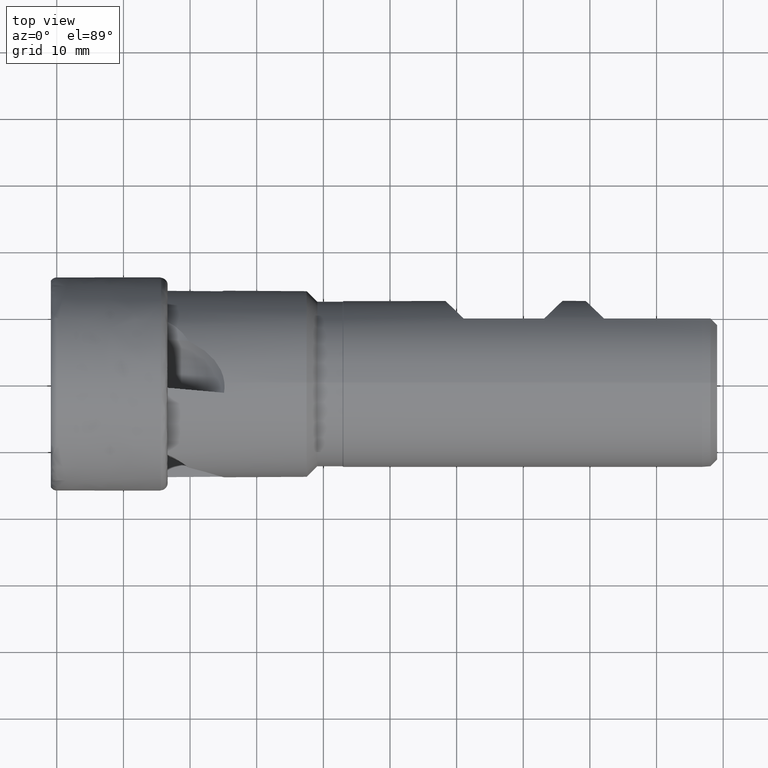
[diagram: clean part render]
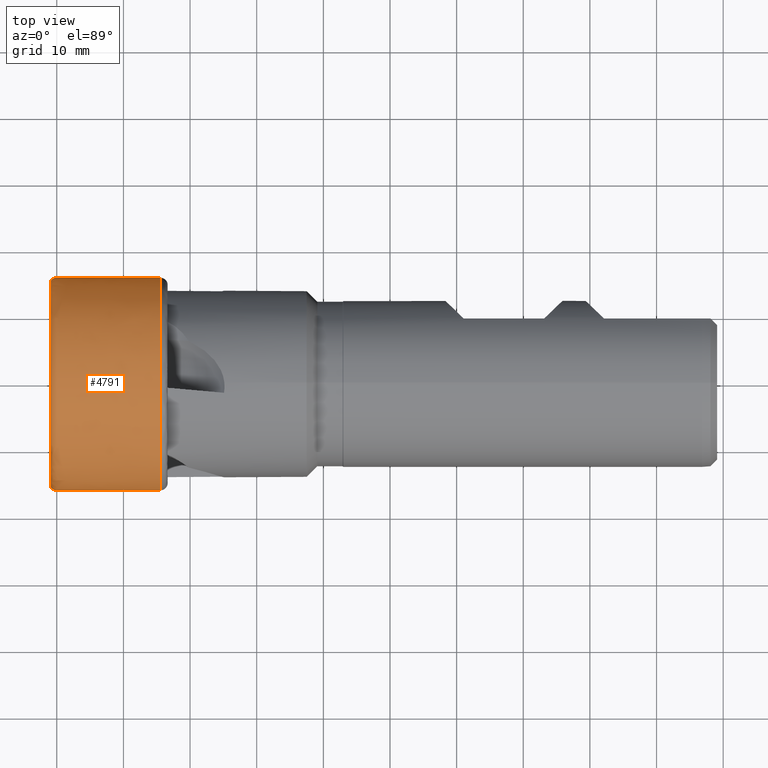
[diagram: same view with one face highlighted and labeled with its STEP entity id]
A machine part, top view. The second image highlights one B-rep face of the part: STEP entity #4791.
In plain terms, the highlighted face is a freeform B-spline surface patch.
Its self-contained STEP definition (entity closure, byte-faithful):
#20 =( BOUNDED_CURVE ( )  B_SPLINE_CURVE ( 3, ( #3063, #3051, #3053, #3055, #3093, #3079, #3061, #3095, #3047, #3059, #3089, #3087, #3091, #3065, #3033, #3039, #3069, #3075, #3073, #3057, #3043, #3041, #3035, #3085, #3049, #3045, #3077, #3083, #3031, #3037, #4803, #4811, #4810, #4805, #4798, #4808, #4807, #4799 ),
 .UNSPECIFIED., .F., .T. ) 
 B_SPLINE_CURVE_WITH_KNOTS ( ( 4, 3, 1, 1, 3, 1, 1, 3, 1, 1, 3, 3, 1, 1, 3, 3, 1, 1, 3, 4 ),
 ( 0.0000000000000000000, 0.05971677211036691800, 0.06116035996774783100, 0.06260394782512873600, 0.06404753568250964900, 0.06649883445116186500, 0.06895013321981409400, 0.07140143198846631000, 0.07283593410986043100, 0.07427043623125453900, 0.07570493835264866000, 0.08923298506668335400, 0.09444165856941083600, 0.09965033207213830300, 0.1048590055748657900, 0.4954390119312780900, 0.4967079386537190900, 0.4979768653761601500, 0.4992457920986011500, 0.4999999999999998300 ),
 .UNSPECIFIED. ) 
 CURVE ( )  GEOMETRIC_REPRESENTATION_ITEM ( )  RATIONAL_B_SPLINE_CURVE ( ( 1.000000000000000000, 1.000000000000000000, 1.000000000000000000, 1.000000000000000000, 1.000000000000000000, 1.000000000000000000, 1.000000000000000000, 1.000000000000000000, 1.000000000000000000, 1.000000000000000000, 1.000000000000000000, 1.000000000000000000, 1.000000000000000000, 1.000000000000000000, 1.000000000000000000, 1.000000000000000000, 1.000000000000000000, 1.000000000000000000, 1.000000000000000000, 0.9833594575083340900, 0.9833594575083340900, 1.000000000000000000, 1.000000000000000000, 1.000000000000000000, 1.000000000000000000, 1.000000000000000000, 1.000000000000000000, 1.000000000000000000, 1.000000000000000000, 1.000000000000000000, 1.000000000000000000, 1.000000000000000000, 1.000000000000000000, 1.000000000000000000, 1.000000000000000000, 0.9967810657435854900, 0.9936257405698391000, 0.9905340244787608200 ) ) 
 REPRESENTATION_ITEM ( '' )  );
#28 =( BOUNDED_CURVE ( )  B_SPLINE_CURVE ( 3, ( #1748, #1694, #1653, #1749, #1695, #1710, #1809, #1723, #1671, #1670, #1701, #1668, #1776, #1775, #1673, #1771, #1724, #1702, #1657, #1705, #1700, #1716, #1664, #1713, #1675, #1684, #1686, #1772, #1682, #1774, #1648, #1680, #1777, #1715, #1720, #1706, #1726, #1667 ),
 .UNSPECIFIED., .F., .T. ) 
 B_SPLINE_CURVE_WITH_KNOTS ( ( 4, 3, 1, 1, 3, 1, 1, 3, 1, 1, 3, 3, 1, 1, 3, 3, 1, 1, 3, 4 ),
 ( 0.0000000000000000000, 0.05971677211036691800, 0.06116035996774783100, 0.06260394782512873600, 0.06404753568250964900, 0.06649883445116186500, 0.06895013321981409400, 0.07140143198846631000, 0.07283593410986043100, 0.07427043623125453900, 0.07570493835264866000, 0.08923298506668335400, 0.09444165856941083600, 0.09965033207213830300, 0.1048590055748657900, 0.4954390119312780900, 0.4967079386537190900, 0.4979768653761601500, 0.4992457920986011500, 0.4999999999999998300 ),
 .UNSPECIFIED. ) 
 CURVE ( )  GEOMETRIC_REPRESENTATION_ITEM ( )  RATIONAL_B_SPLINE_CURVE ( ( 1.000000000000000000, 1.000000000000000000, 1.000000000000000000, 1.000000000000000000, 1.000000000000000000, 1.000000000000000000, 1.000000000000000000, 1.000000000000000000, 1.000000000000000000, 1.000000000000000000, 1.000000000000000000, 1.000000000000000000, 1.000000000000000000, 1.000000000000000000, 1.000000000000000000, 1.000000000000000000, 1.000000000000000000, 1.000000000000000000, 1.000000000000000000, 0.9833594575083340900, 0.9833594575083340900, 1.000000000000000000, 1.000000000000000000, 1.000000000000000000, 1.000000000000000000, 1.000000000000000000, 1.000000000000000000, 1.000000000000000000, 1.000000000000000000, 1.000000000000000000, 1.000000000000000000, 1.000000000000000000, 1.000000000000000000, 1.000000000000000000, 1.000000000000000000, 0.9967810657435854900, 0.9936257405698391000, 0.9905340244787608200 ) ) 
 REPRESENTATION_ITEM ( '' )  );
#204 = CIRCLE ( 'NONE', #4660, 15.95837609584169100 ) ;
#1648 = CARTESIAN_POINT ( 'NONE',  ( 15.46532410085391300, 16.00000000000001400, 1.959434878635767100E-015 ) ) ;
#1653 = CARTESIAN_POINT ( 'NONE',  ( -0.8839497517615153600, 14.44059205853243600, 1.768462484227443600E-015 ) ) ;
#1657 = CARTESIAN_POINT ( 'NONE',  ( -0.6804056226594706900, 15.73494428497193600, 1.926974915335281800E-015 ) ) ;
#1664 = CARTESIAN_POINT ( 'NONE',  ( -0.1534900326598369300, 15.98226663239624800, 1.957263167448361200E-015 ) ) ;
#1667 = CARTESIAN_POINT ( 'NONE',  ( 15.61958193997870300, 15.95837609584168800, 1.954337420536446100E-015 ) ) ;
#1668 = CARTESIAN_POINT ( 'NONE',  ( -0.8590926210603674300, 15.55156870788385200, 1.904517883983010000E-015 ) ) ;
#1670 = CARTESIAN_POINT ( 'NONE',  ( -0.8951912617288186900, 15.39076757425133300, 1.884825424622776900E-015 ) ) ;
#1671 = CARTESIAN_POINT ( 'NONE',  ( -0.8948246283205213400, 15.35977831312693800, 1.881030334678383800E-015 ) ) ;
#1673 = CARTESIAN_POINT ( 'NONE',  ( -0.7853823189140168900, 15.63470915963717500, 1.914699652794947400E-015 ) ) ;
#1675 = CARTESIAN_POINT ( 'NONE',  ( 0.1822993511732070300, 15.99999999999999300, 1.959434878635764300E-015 ) ) ;
#1680 = CARTESIAN_POINT ( 'NONE',  ( 15.49795487321788600, 16.00000000000001400, 1.959434878635767100E-015 ) ) ;
#1682 = CARTESIAN_POINT ( 'NONE',  ( 10.42707677331455500, 15.99999999999998200, 1.959434878635763200E-015 ) ) ;
#1684 = CARTESIAN_POINT ( 'NONE',  ( 0.3162417107909673000, 15.99999999999999300, 1.959434878635764300E-015 ) ) ;
#1686 = CARTESIAN_POINT ( 'NONE',  ( 0.3832128905998448700, 15.99999999999999300, 1.959434878635764300E-015 ) ) ;
#1694 = CARTESIAN_POINT ( 'NONE',  ( -0.8750180931765398900, 13.68565403624818100, 1.676009240972939000E-015 ) ) ;
#1695 = CARTESIAN_POINT ( 'NONE',  ( -0.8930973234547174800, 15.21377988440671600, 1.863150683837107200E-015 ) ) ;
#1700 = CARTESIAN_POINT ( 'NONE',  ( -0.3905705861082455200, 15.92519493658803300, 1.950273900489017000E-015 ) ) ;
#1701 = CARTESIAN_POINT ( 'NONE',  ( -0.8959245285454143800, 15.45274609650012100, 1.892415604511562700E-015 ) ) ;
#1702 = CARTESIAN_POINT ( 'NONE',  ( -0.6943049349135274100, 15.72329390853263800, 1.925548155713757200E-015 ) ) ;
#1705 = CARTESIAN_POINT ( 'NONE',  ( -0.5471102994393440800, 15.84667216508047400, 1.940657634410325600E-015 ) ) ;
#1706 = CARTESIAN_POINT ( 'NONE',  ( 15.60014103624398600, 15.95990549066247900, 1.954524717383407500E-015 ) ) ;
#1710 = CARTESIAN_POINT ( 'NONE',  ( -0.8935291496711682500, 15.25027949158677000, 1.867620596547426100E-015 ) ) ;
#1713 = CARTESIAN_POINT ( 'NONE',  ( -0.02055834271671194000, 16.00235978036729600, 1.959723868383115100E-015 ) ) ;
#1715 = CARTESIAN_POINT ( 'NONE',  ( 15.57414270532598400, 15.96144758845654000, 1.954713569896154300E-015 ) ) ;
#1716 = CARTESIAN_POINT ( 'NONE',  ( -0.2186011999201319700, 15.96659261494711900, 1.955343653918475700E-015 ) ) ;
#1720 = CARTESIAN_POINT ( 'NONE',  ( 15.59042946580770700, 15.96048153500139600, 1.954595262468989400E-015 ) ) ;
#1723 = CARTESIAN_POINT ( 'NONE',  ( -0.8946087152122953500, 15.34152850953691200, 1.878795378323224600E-015 ) ) ;
#1724 = CARTESIAN_POINT ( 'NONE',  ( -0.7215299311227032500, 15.69930879675059500, 1.922610826676650200E-015 ) ) ;
#1726 = CARTESIAN_POINT ( 'NONE',  ( 15.60985913091798200, 15.95920403206816100, 1.954438813481180500E-015 ) ) ;
#1748 = CARTESIAN_POINT ( 'NONE',  ( -0.8660864345915644200, 12.93071601396393400, 1.771639933050775100E-015 ) ) ;
#1749 = CARTESIAN_POINT ( 'NONE',  ( -0.8928814103464913800, 15.19553008081668600, 1.860915727481947600E-015 ) ) ;
#1771 = CARTESIAN_POINT ( 'NONE',  ( -0.7613193259417203600, 15.66185065883062700, 1.918023527806078900E-015 ) ) ;
#1772 = CARTESIAN_POINT ( 'NONE',  ( 5.405144831957199100, 16.00000000000000400, 1.959434878635765500E-015 ) ) ;
#1774 = CARTESIAN_POINT ( 'NONE',  ( 15.44900871467192100, 16.00000000000001400, 1.959434878635767100E-015 ) ) ;
#1775 = CARTESIAN_POINT ( 'NONE',  ( -0.7974138154001649800, 15.62113841004045000, 1.913037715289381000E-015 ) ) ;
#1776 = CARTESIAN_POINT ( 'NONE',  ( -0.8179734172868991000, 15.59794850932157900, 1.910197771520590300E-015 ) ) ;
#1777 = CARTESIAN_POINT ( 'NONE',  ( 15.54152761344067800, 15.96267884838620600, 1.954864355749332600E-015 ) ) ;
#1809 = CARTESIAN_POINT ( 'NONE',  ( -0.8941768889958444700, 15.30502890235685800, 1.874325465612905700E-015 ) ) ;
#2427 = AXIS2_PLACEMENT_3D ( 'NONE', #3472, #3473, #3474 ) ;
#2541 = FACE_OUTER_BOUND ( 'NONE', #4886, .T. ) ;
#2579 = CIRCLE ( 'NONE', #2427, 12.93071601396393400 ) ;
#2634 = CARTESIAN_POINT ( 'NONE',  ( -0.8660864345915640900, -12.93071601396393400, 0.0000000000000000000 ) ) ;
#2635 = CARTESIAN_POINT ( 'NONE',  ( -0.8660864345915640900, -12.93071601396393600, 25.86143202792786200 ) ) ;
#2636 = CARTESIAN_POINT ( 'NONE',  ( -0.8660864345915640900, 12.93071601396393100, 25.86143202792786200 ) ) ;
#2637 = CARTESIAN_POINT ( 'NONE',  ( -0.8660864345915640900, 12.93071601396393400, 1.583555997718435400E-015 ) ) ;
#2638 = CARTESIAN_POINT ( 'NONE',  ( -0.8750180931765398900, -13.68565403624818100, 0.0000000000000000000 ) ) ;
#2639 = CARTESIAN_POINT ( 'NONE',  ( -0.8750180931765397800, -13.68565403624817900, 27.37130807249635500 ) ) ;
#2640 = CARTESIAN_POINT ( 'NONE',  ( -0.8750180931765397800, 13.68565403624817700, 27.37130807249635500 ) ) ;
#2641 = CARTESIAN_POINT ( 'NONE',  ( -0.8750180931765398900, 13.68565403624818100, 1.676009240972939000E-015 ) ) ;
#2642 = CARTESIAN_POINT ( 'NONE',  ( -0.8839497517615153600, -14.44059205853243600, 0.0000000000000000000 ) ) ;
#2643 = CARTESIAN_POINT ( 'NONE',  ( -0.8839497517615153600, -14.44059205853243600, 28.88118411706486900 ) ) ;
#2644 = CARTESIAN_POINT ( 'NONE',  ( -0.8839497517615153600, 14.44059205853243500, 28.88118411706486900 ) ) ;
#2645 = CARTESIAN_POINT ( 'NONE',  ( -0.8839497517615153600, 14.44059205853243600, 1.768462484227443600E-015 ) ) ;
#2646 = CARTESIAN_POINT ( 'NONE',  ( -0.8928814103464913800, -15.19553008081668600, 0.0000000000000000000 ) ) ;
#2647 = CARTESIAN_POINT ( 'NONE',  ( -0.8928814103464914900, -15.19553008081668800, 30.39106016163337300 ) ) ;
#2648 = CARTESIAN_POINT ( 'NONE',  ( -0.8928814103464914900, 15.19553008081668600, 30.39106016163337300 ) ) ;
#2649 = CARTESIAN_POINT ( 'NONE',  ( -0.8928814103464913800, 15.19553008081668600, 1.860915727481947600E-015 ) ) ;
#2650 = CARTESIAN_POINT ( 'NONE',  ( -0.8930973234547174800, -15.21377988440671600, 0.0000000000000000000 ) ) ;
#2651 = CARTESIAN_POINT ( 'NONE',  ( -0.8930973234547176000, -15.21377988440671600, 30.42755976881342800 ) ) ;
#2652 = CARTESIAN_POINT ( 'NONE',  ( -0.8930973234547176000, 15.21377988440671400, 30.42755976881342800 ) ) ;
#2653 = CARTESIAN_POINT ( 'NONE',  ( -0.8930973234547174800, 15.21377988440671600, 1.863150683837107200E-015 ) ) ;
#2654 = CARTESIAN_POINT ( 'NONE',  ( -0.8935291496711682500, -15.25027949158677000, 0.0000000000000000000 ) ) ;
#2655 = CARTESIAN_POINT ( 'NONE',  ( -0.8935291496711682500, -15.25027949158677000, 30.50055898317353700 ) ) ;
#2656 = CARTESIAN_POINT ( 'NONE',  ( -0.8935291496711682500, 15.25027949158676900, 30.50055898317353700 ) ) ;
#2657 = CARTESIAN_POINT ( 'NONE',  ( -0.8935291496711682500, 15.25027949158677000, 1.867620596547426100E-015 ) ) ;
#2658 = CARTESIAN_POINT ( 'NONE',  ( -0.8941768889958444700, -15.30502890235685800, 0.0000000000000000000 ) ) ;
#2659 = CARTESIAN_POINT ( 'NONE',  ( -0.8941768889958444700, -15.30502890235685800, 30.61005780471371200 ) ) ;
#2660 = CARTESIAN_POINT ( 'NONE',  ( -0.8941768889958444700, 15.30502890235685600, 30.61005780471371200 ) ) ;
#2661 = CARTESIAN_POINT ( 'NONE',  ( -0.8941768889958444700, 15.30502890235685800, 1.874325465612905700E-015 ) ) ;
#2662 = CARTESIAN_POINT ( 'NONE',  ( -0.8946087152122953500, -15.34152850953691200, 0.0000000000000000000 ) ) ;
#2663 = CARTESIAN_POINT ( 'NONE',  ( -0.8946087152122953500, -15.34152850953691200, 30.68305701907381400 ) ) ;
#2664 = CARTESIAN_POINT ( 'NONE',  ( -0.8946087152122953500, 15.34152850953690700, 30.68305701907382100 ) ) ;
#2665 = CARTESIAN_POINT ( 'NONE',  ( -0.8946087152122953500, 15.34152850953691200, 1.878795378323224600E-015 ) ) ;
#2666 = CARTESIAN_POINT ( 'NONE',  ( -0.8948246283205213400, -15.35977831312693800, 0.0000000000000000000 ) ) ;
#2667 = CARTESIAN_POINT ( 'NONE',  ( -0.8948246283205214500, -15.35977831312693800, 30.71955662625386900 ) ) ;
#2668 = CARTESIAN_POINT ( 'NONE',  ( -0.8948246283205214500, 15.35977831312693500, 30.71955662625387600 ) ) ;
#2669 = CARTESIAN_POINT ( 'NONE',  ( -0.8948246283205213400, 15.35977831312693800, 1.881030334678383800E-015 ) ) ;
#2670 = CARTESIAN_POINT ( 'NONE',  ( -0.8951912617288186900, -15.39076757425133300, 0.0000000000000000000 ) ) ;
#2671 = CARTESIAN_POINT ( 'NONE',  ( -0.8951912617288188000, -15.39076757425133700, 30.78153514850266200 ) ) ;
#2672 = CARTESIAN_POINT ( 'NONE',  ( -0.8951912617288188000, 15.39076757425133100, 30.78153514850266600 ) ) ;
#2673 = CARTESIAN_POINT ( 'NONE',  ( -0.8951912617288186900, 15.39076757425133300, 1.884825424622776900E-015 ) ) ;
#2674 = CARTESIAN_POINT ( 'NONE',  ( -0.8959245285454143800, -15.45274609650012100, 0.0000000000000000000 ) ) ;
#2675 = CARTESIAN_POINT ( 'NONE',  ( -0.8959245285454142700, -15.45274609650011900, 30.90549219300023500 ) ) ;
#2676 = CARTESIAN_POINT ( 'NONE',  ( -0.8959245285454142700, 15.45274609650011800, 30.90549219300023500 ) ) ;
#2677 = CARTESIAN_POINT ( 'NONE',  ( -0.8959245285454143800, 15.45274609650012100, 1.892415604511562700E-015 ) ) ;
#2678 = CARTESIAN_POINT ( 'NONE',  ( -0.8590926210603674300, -15.55156870788385200, 0.0000000000000000000 ) ) ;
#2679 = CARTESIAN_POINT ( 'NONE',  ( -0.8590926210603674300, -15.55156870788385200, 31.10313741576769400 ) ) ;
#2680 = CARTESIAN_POINT ( 'NONE',  ( -0.8590926210603674300, 15.55156870788384700, 31.10313741576770100 ) ) ;
#2681 = CARTESIAN_POINT ( 'NONE',  ( -0.8590926210603674300, 15.55156870788385200, 1.904517883983010000E-015 ) ) ;
#2682 = CARTESIAN_POINT ( 'NONE',  ( -0.8179734172868991000, -15.59794850932157900, 0.0000000000000000000 ) ) ;
#2683 = CARTESIAN_POINT ( 'NONE',  ( -0.8179734172868989800, -15.59794850932157900, 31.19589701864315500 ) ) ;
#2684 = CARTESIAN_POINT ( 'NONE',  ( -0.8179734172868989800, 15.59794850932157800, 31.19589701864315500 ) ) ;
#2685 = CARTESIAN_POINT ( 'NONE',  ( -0.8179734172868991000, 15.59794850932157900, 1.910197771520590300E-015 ) ) ;
#2686 = CARTESIAN_POINT ( 'NONE',  ( -0.7974138154001649800, -15.62113841004045000, 0.0000000000000000000 ) ) ;
#2687 = CARTESIAN_POINT ( 'NONE',  ( -0.7974138154001649800, -15.62113841004045200, 31.24227682008089200 ) ) ;
#2688 = CARTESIAN_POINT ( 'NONE',  ( -0.7974138154001649800, 15.62113841004044600, 31.24227682008089600 ) ) ;
#2689 = CARTESIAN_POINT ( 'NONE',  ( -0.7974138154001649800, 15.62113841004045000, 1.913037715289381000E-015 ) ) ;
#2690 = CARTESIAN_POINT ( 'NONE',  ( -0.7853823189140168900, -15.63470915963717500, 0.0000000000000000000 ) ) ;
#2691 = CARTESIAN_POINT ( 'NONE',  ( -0.7853823189140168900, -15.63470915963717700, 31.26941831927434400 ) ) ;
#2692 = CARTESIAN_POINT ( 'NONE',  ( -0.7853823189140168900, 15.63470915963717200, 31.26941831927434400 ) ) ;
#2693 = CARTESIAN_POINT ( 'NONE',  ( -0.7853823189140168900, 15.63470915963717500, 1.914699652794947400E-015 ) ) ;
#2694 = CARTESIAN_POINT ( 'NONE',  ( -0.7613193259417203600, -15.66185065883062700, 0.0000000000000000000 ) ) ;
#2695 = CARTESIAN_POINT ( 'NONE',  ( -0.7613193259417203600, -15.66185065883062900, 31.32370131766124600 ) ) ;
#2696 = CARTESIAN_POINT ( 'NONE',  ( -0.7613193259417203600, 15.66185065883062300, 31.32370131766124600 ) ) ;
#2697 = CARTESIAN_POINT ( 'NONE',  ( -0.7613193259417203600, 15.66185065883062700, 1.918023527806078900E-015 ) ) ;
#2698 = CARTESIAN_POINT ( 'NONE',  ( -0.7215299311227032500, -15.69930879675059500, 0.0000000000000000000 ) ) ;
#2699 = CARTESIAN_POINT ( 'NONE',  ( -0.7215299311227032500, -15.69930879675059500, 31.39861759350118200 ) ) ;
#2700 = CARTESIAN_POINT ( 'NONE',  ( -0.7215299311227032500, 15.69930879675059100, 31.39861759350118200 ) ) ;
#2701 = CARTESIAN_POINT ( 'NONE',  ( -0.7215299311227032500, 15.69930879675059500, 1.922610826676650200E-015 ) ) ;
#2702 = CARTESIAN_POINT ( 'NONE',  ( -0.6943049349135274100, -15.72329390853263800, 0.0000000000000000000 ) ) ;
#2703 = CARTESIAN_POINT ( 'NONE',  ( -0.6943049349135274100, -15.72329390853263800, 31.44658781706526800 ) ) ;
#2704 = CARTESIAN_POINT ( 'NONE',  ( -0.6943049349135274100, 15.72329390853263400, 31.44658781706526800 ) ) ;
#2705 = CARTESIAN_POINT ( 'NONE',  ( -0.6943049349135274100, 15.72329390853263800, 1.925548155713757200E-015 ) ) ;
#2706 = CARTESIAN_POINT ( 'NONE',  ( -0.6804056226594706900, -15.73494428497193600, 0.0000000000000000000 ) ) ;
#2707 = CARTESIAN_POINT ( 'NONE',  ( -0.6804056226594706900, -15.73494428497193600, 31.46988856994386600 ) ) ;
#2708 = CARTESIAN_POINT ( 'NONE',  ( -0.6804056226594706900, 15.73494428497193300, 31.46988856994386600 ) ) ;
#2709 = CARTESIAN_POINT ( 'NONE',  ( -0.6804056226594706900, 15.73494428497193600, 1.926974915335281800E-015 ) ) ;
#2710 = CARTESIAN_POINT ( 'NONE',  ( -0.5471102994393439700, -15.84667216508047400, 0.0000000000000000000 ) ) ;
#2711 = CARTESIAN_POINT ( 'NONE',  ( -0.5471102994393441900, -15.84667216508047200, 31.69334433016094000 ) ) ;
#2712 = CARTESIAN_POINT ( 'NONE',  ( -0.5471102994393441900, 15.84667216508047000, 31.69334433016094000 ) ) ;
#2713 = CARTESIAN_POINT ( 'NONE',  ( -0.5471102994393439700, 15.84667216508047400, 1.940657634410325600E-015 ) ) ;
#2714 = CARTESIAN_POINT ( 'NONE',  ( -0.3905705861082454700, -15.92519493658803300, 0.0000000000000000000 ) ) ;
#2715 = CARTESIAN_POINT ( 'NONE',  ( -0.3905705861082455200, -15.92519493658803700, 31.85038987317606600 ) ) ;
#2716 = CARTESIAN_POINT ( 'NONE',  ( -0.3905705861082455200, 15.92519493658803300, 31.85038987317606600 ) ) ;
#2717 = CARTESIAN_POINT ( 'NONE',  ( -0.3905705861082454700, 15.92519493658803300, 1.950273900489017000E-015 ) ) ;
#2718 = CARTESIAN_POINT ( 'NONE',  ( -0.2186011999201319700, -15.96659261494711900, 0.0000000000000000000 ) ) ;
#2719 = CARTESIAN_POINT ( 'NONE',  ( -0.2186011999201319700, -15.96659261494711900, 31.93318522989423200 ) ) ;
#2720 = CARTESIAN_POINT ( 'NONE',  ( -0.2186011999201319700, 15.96659261494711600, 31.93318522989423200 ) ) ;
#2721 = CARTESIAN_POINT ( 'NONE',  ( -0.2186011999201319700, 15.96659261494711900, 1.955343653918475700E-015 ) ) ;
#2722 = CARTESIAN_POINT ( 'NONE',  ( -0.1534900326598369300, -15.98226663239624800, 0.0000000000000000000 ) ) ;
#2723 = CARTESIAN_POINT ( 'NONE',  ( -0.1534900326598369300, -15.98226663239625000, 31.96453326479249300 ) ) ;
#2724 = CARTESIAN_POINT ( 'NONE',  ( -0.1534900326598369300, 15.98226663239624700, 31.96453326479249300 ) ) ;
#2725 = CARTESIAN_POINT ( 'NONE',  ( -0.1534900326598369300, 15.98226663239624800, 1.957263167448361200E-015 ) ) ;
#2726 = CARTESIAN_POINT ( 'NONE',  ( -0.02055834271671194000, -16.00235978036729600, 0.0000000000000000000 ) ) ;
#2727 = CARTESIAN_POINT ( 'NONE',  ( -0.02055834271671194000, -16.00235978036729600, 32.00471956073457800 ) ) ;
#2728 = CARTESIAN_POINT ( 'NONE',  ( -0.02055834271671194000, 16.00235978036728900, 32.00471956073457800 ) ) ;
#2729 = CARTESIAN_POINT ( 'NONE',  ( -0.02055834271671194000, 16.00235978036729600, 1.959723868383115100E-015 ) ) ;
#2730 = CARTESIAN_POINT ( 'NONE',  ( 0.1822993511732070300, -15.99999999999999300, 0.0000000000000000000 ) ) ;
#2731 = CARTESIAN_POINT ( 'NONE',  ( 0.1822993511732070300, -15.99999999999999300, 31.99999999999997900 ) ) ;
#2732 = CARTESIAN_POINT ( 'NONE',  ( 0.1822993511732070300, 15.99999999999998900, 31.99999999999997900 ) ) ;
#2733 = CARTESIAN_POINT ( 'NONE',  ( 0.1822993511732070300, 15.99999999999999300, 1.959434878635764300E-015 ) ) ;
#2734 = CARTESIAN_POINT ( 'NONE',  ( 0.3162417107909673000, -15.99999999999999300, 0.0000000000000000000 ) ) ;
#2735 = CARTESIAN_POINT ( 'NONE',  ( 0.3162417107909673000, -15.99999999999999300, 31.99999999999997900 ) ) ;
#2736 = CARTESIAN_POINT ( 'NONE',  ( 0.3162417107909673000, 15.99999999999998900, 31.99999999999997900 ) ) ;
#2737 = CARTESIAN_POINT ( 'NONE',  ( 0.3162417107909673000, 15.99999999999999300, 1.959434878635764300E-015 ) ) ;
#2738 = CARTESIAN_POINT ( 'NONE',  ( 0.3832128905998448700, -15.99999999999999300, 0.0000000000000000000 ) ) ;
#2739 = CARTESIAN_POINT ( 'NONE',  ( 0.3832128905998448700, -15.99999999999999300, 31.99999999999997900 ) ) ;
#2740 = CARTESIAN_POINT ( 'NONE',  ( 0.3832128905998448700, 15.99999999999998900, 31.99999999999997900 ) ) ;
#2741 = CARTESIAN_POINT ( 'NONE',  ( 0.3832128905998448700, 15.99999999999999300, 1.959434878635764300E-015 ) ) ;
#2742 = CARTESIAN_POINT ( 'NONE',  ( 5.405144831957199100, -16.00000000000000400, 0.0000000000000000000 ) ) ;
#2743 = CARTESIAN_POINT ( 'NONE',  ( 5.405144831957199100, -16.00000000000000400, 32.00000000000000000 ) ) ;
#2744 = CARTESIAN_POINT ( 'NONE',  ( 5.405144831957199100, 16.00000000000000000, 32.00000000000000000 ) ) ;
#2745 = CARTESIAN_POINT ( 'NONE',  ( 5.405144831957199100, 16.00000000000000400, 1.959434878635765500E-015 ) ) ;
#2746 = CARTESIAN_POINT ( 'NONE',  ( 10.42707677331455500, -15.99999999999998200, 0.0000000000000000000 ) ) ;
#2747 = CARTESIAN_POINT ( 'NONE',  ( 10.42707677331455500, -15.99999999999998200, 31.99999999999995700 ) ) ;
#2748 = CARTESIAN_POINT ( 'NONE',  ( 10.42707677331455500, 15.99999999999997900, 31.99999999999995700 ) ) ;
#2749 = CARTESIAN_POINT ( 'NONE',  ( 10.42707677331455500, 15.99999999999998200, 1.959434878635763200E-015 ) ) ;
#2750 = CARTESIAN_POINT ( 'NONE',  ( 15.44900871467192100, -16.00000000000001400, 0.0000000000000000000 ) ) ;
#2751 = CARTESIAN_POINT ( 'NONE',  ( 15.44900871467192100, -16.00000000000001400, 32.00000000000002100 ) ) ;
#2752 = CARTESIAN_POINT ( 'NONE',  ( 15.44900871467192100, 16.00000000000001100, 32.00000000000002100 ) ) ;
#2753 = CARTESIAN_POINT ( 'NONE',  ( 15.44900871467192100, 16.00000000000001400, 1.959434878635767100E-015 ) ) ;
#2754 = CARTESIAN_POINT ( 'NONE',  ( 15.46532410085391300, -16.00000000000001400, 0.0000000000000000000 ) ) ;
#2755 = CARTESIAN_POINT ( 'NONE',  ( 15.46532410085391400, -16.00000000000001400, 32.00000000000002100 ) ) ;
#2756 = CARTESIAN_POINT ( 'NONE',  ( 15.46532410085391400, 16.00000000000001100, 32.00000000000002100 ) ) ;
#2757 = CARTESIAN_POINT ( 'NONE',  ( 15.46532410085391300, 16.00000000000001400, 1.959434878635767100E-015 ) ) ;
#2758 = CARTESIAN_POINT ( 'NONE',  ( 15.49795487321788600, -16.00000000000001400, 0.0000000000000000000 ) ) ;
#2759 = CARTESIAN_POINT ( 'NONE',  ( 15.49795487321788400, -16.00000000000001400, 32.00000000000002100 ) ) ;
#2760 = CARTESIAN_POINT ( 'NONE',  ( 15.49795487321788400, 16.00000000000001100, 32.00000000000002100 ) ) ;
#2761 = CARTESIAN_POINT ( 'NONE',  ( 15.49795487321788600, 16.00000000000001400, 1.959434878635767100E-015 ) ) ;
#2762 = CARTESIAN_POINT ( 'NONE',  ( 15.54152761344067800, -15.96267884838620600, 0.0000000000000000000 ) ) ;
#2763 = CARTESIAN_POINT ( 'NONE',  ( 15.54152761344068000, -15.96267884838620800, 31.92535769677240500 ) ) ;
#2764 = CARTESIAN_POINT ( 'NONE',  ( 15.54152761344068000, 15.96267884838620300, 31.92535769677240500 ) ) ;
#2765 = CARTESIAN_POINT ( 'NONE',  ( 15.54152761344067800, 15.96267884838620600, 1.954864355749332600E-015 ) ) ;
#2766 = CARTESIAN_POINT ( 'NONE',  ( 15.57414270532598400, -15.96144758845654000, 0.0000000000000000000 ) ) ;
#2767 = CARTESIAN_POINT ( 'NONE',  ( 15.57414270532598400, -15.96144758845654200, 31.92289517691307700 ) ) ;
#2768 = CARTESIAN_POINT ( 'NONE',  ( 15.57414270532598400, 15.96144758845653800, 31.92289517691307700 ) ) ;
#2769 = CARTESIAN_POINT ( 'NONE',  ( 15.57414270532598400, 15.96144758845654000, 1.954713569896154300E-015 ) ) ;
#2770 = CARTESIAN_POINT ( 'NONE',  ( 15.59042946580770700, -15.96048153500139600, 0.0000000000000000000 ) ) ;
#2771 = CARTESIAN_POINT ( 'NONE',  ( 15.59042946580770900, -15.96048153500139600, 31.92096307000278400 ) ) ;
#2772 = CARTESIAN_POINT ( 'NONE',  ( 15.59042946580770900, 15.96048153500139200, 31.92096307000278400 ) ) ;
#2773 = CARTESIAN_POINT ( 'NONE',  ( 15.59042946580770700, 15.96048153500139600, 1.954595262468989400E-015 ) ) ;
#2774 = CARTESIAN_POINT ( 'NONE',  ( 15.60014103624398600, -15.95990549066248000, 0.0000000000000000000 ) ) ;
#2775 = CARTESIAN_POINT ( 'NONE',  ( 15.60014103624398600, -15.95990549066247900, 31.91981098132495400 ) ) ;
#2776 = CARTESIAN_POINT ( 'NONE',  ( 15.60014103624398600, 15.95990549066247700, 31.91981098132495400 ) ) ;
#2777 = CARTESIAN_POINT ( 'NONE',  ( 15.60014103624398600, 15.95990549066248000, 1.954524717383407500E-015 ) ) ;
#2778 = CARTESIAN_POINT ( 'NONE',  ( 15.60985913091798100, -15.95920403206816100, 0.0000000000000000000 ) ) ;
#2779 = CARTESIAN_POINT ( 'NONE',  ( 15.60985913091798600, -15.95920403206816700, 31.91840806413632600 ) ) ;
#2780 = CARTESIAN_POINT ( 'NONE',  ( 15.60985913091798600, 15.95920403206816300, 31.91840806413632600 ) ) ;
#2781 = CARTESIAN_POINT ( 'NONE',  ( 15.60985913091798100, 15.95920403206816100, 1.954438813481180500E-015 ) ) ;
#2782 = CARTESIAN_POINT ( 'NONE',  ( 15.61958193997870300, -15.95837609584169500, 0.0000000000000000000 ) ) ;
#2783 = CARTESIAN_POINT ( 'NONE',  ( 15.61958193997870300, -15.95837609584169500, 31.91675219168338600 ) ) ;
#2784 = CARTESIAN_POINT ( 'NONE',  ( 15.61958193997870300, 15.95837609584169300, 31.91675219168338600 ) ) ;
#2785 = CARTESIAN_POINT ( 'NONE',  ( 15.61958193997870300, 15.95837609584169500, 1.954337420536217300E-015 ) ) ;
#3031 = CARTESIAN_POINT ( 'NONE',  ( 10.42707677331455500, -15.99999999999998200, 0.0000000000000000000 ) ) ;
#3033 = CARTESIAN_POINT ( 'NONE',  ( -0.7853823189140168900, -15.63470915963717500, 0.0000000000000000000 ) ) ;
#3035 = CARTESIAN_POINT ( 'NONE',  ( -0.1534900326598369300, -15.98226663239624800, 0.0000000000000000000 ) ) ;
#3037 = CARTESIAN_POINT ( 'NONE',  ( 15.44900871467192100, -16.00000000000001400, 0.0000000000000000000 ) ) ;
#3039 = CARTESIAN_POINT ( 'NONE',  ( -0.7613193259417203600, -15.66185065883062700, 0.0000000000000000000 ) ) ;
#3041 = CARTESIAN_POINT ( 'NONE',  ( -0.2186011999201319700, -15.96659261494711900, 0.0000000000000000000 ) ) ;
#3043 = CARTESIAN_POINT ( 'NONE',  ( -0.3905705861082455200, -15.92519493658803300, 0.0000000000000000000 ) ) ;
#3045 = CARTESIAN_POINT ( 'NONE',  ( 0.3162417107909673000, -15.99999999999999300, 0.0000000000000000000 ) ) ;
#3047 = CARTESIAN_POINT ( 'NONE',  ( -0.8948246283205213400, -15.35977831312693800, 0.0000000000000000000 ) ) ;
#3049 = CARTESIAN_POINT ( 'NONE',  ( 0.1822993511732070300, -15.99999999999999300, 0.0000000000000000000 ) ) ;
#3051 = CARTESIAN_POINT ( 'NONE',  ( -0.8750180931765398900, -13.68565403624818100, 0.0000000000000000000 ) ) ;
#3053 = CARTESIAN_POINT ( 'NONE',  ( -0.8839497517615153600, -14.44059205853243600, 0.0000000000000000000 ) ) ;
#3055 = CARTESIAN_POINT ( 'NONE',  ( -0.8928814103464913800, -15.19553008081668600, 0.0000000000000000000 ) ) ;
#3057 = CARTESIAN_POINT ( 'NONE',  ( -0.5471102994393440800, -15.84667216508047400, 0.0000000000000000000 ) ) ;
#3059 = CARTESIAN_POINT ( 'NONE',  ( -0.8951912617288186900, -15.39076757425133300, 0.0000000000000000000 ) ) ;
#3061 = CARTESIAN_POINT ( 'NONE',  ( -0.8941768889958444700, -15.30502890235685800, 0.0000000000000000000 ) ) ;
#3063 = CARTESIAN_POINT ( 'NONE',  ( -0.8660864345915640900, -12.93071601396393400, 0.0000000000000000000 ) ) ;
#3065 = CARTESIAN_POINT ( 'NONE',  ( -0.7974138154001649800, -15.62113841004045000, 0.0000000000000000000 ) ) ;
#3069 = CARTESIAN_POINT ( 'NONE',  ( -0.7215299311227032500, -15.69930879675059500, 0.0000000000000000000 ) ) ;
#3073 = CARTESIAN_POINT ( 'NONE',  ( -0.6804056226594706900, -15.73494428497193600, 0.0000000000000000000 ) ) ;
#3075 = CARTESIAN_POINT ( 'NONE',  ( -0.6943049349135274100, -15.72329390853263800, 0.0000000000000000000 ) ) ;
#3077 = CARTESIAN_POINT ( 'NONE',  ( 0.3832128905998448700, -15.99999999999999300, 0.0000000000000000000 ) ) ;
#3079 = CARTESIAN_POINT ( 'NONE',  ( -0.8935291496711682500, -15.25027949158677000, 0.0000000000000000000 ) ) ;
#3083 = CARTESIAN_POINT ( 'NONE',  ( 5.405144831957199100, -16.00000000000000400, 0.0000000000000000000 ) ) ;
#3085 = CARTESIAN_POINT ( 'NONE',  ( -0.02055834271671194000, -16.00235978036729600, 0.0000000000000000000 ) ) ;
#3087 = CARTESIAN_POINT ( 'NONE',  ( -0.8590926210603674300, -15.55156870788385200, 0.0000000000000000000 ) ) ;
#3089 = CARTESIAN_POINT ( 'NONE',  ( -0.8959245285454143800, -15.45274609650012100, 0.0000000000000000000 ) ) ;
#3091 = CARTESIAN_POINT ( 'NONE',  ( -0.8179734172868991000, -15.59794850932157900, 0.0000000000000000000 ) ) ;
#3093 = CARTESIAN_POINT ( 'NONE',  ( -0.8930973234547174800, -15.21377988440671600, 0.0000000000000000000 ) ) ;
#3095 = CARTESIAN_POINT ( 'NONE',  ( -0.8946087152122953500, -15.34152850953691200, 0.0000000000000000000 ) ) ;
#3104 = CARTESIAN_POINT ( 'NONE',  ( -0.8660864345915644200, 12.93071601396393400, 1.771639933050775100E-015 ) ) ;
#3114 = CARTESIAN_POINT ( 'NONE',  ( -0.8660864345915640900, -12.93071601396393400, 0.0000000000000000000 ) ) ;
#3135 = CARTESIAN_POINT ( 'NONE',  ( 15.61958193997870300, -15.95837609584169100, 0.0000000000000000000 ) ) ;
#3234 = CARTESIAN_POINT ( 'NONE',  ( 15.61958193997870300, 15.95837609584169100, 1.954337420536446100E-015 ) ) ;
#3472 = CARTESIAN_POINT ( 'NONE',  ( -0.8660864345915644200, 0.0000000000000000000, 0.0000000000000000000 ) ) ;
#3473 = DIRECTION ( 'NONE',  ( -1.000000000000000000, -0.0000000000000000000, -0.0000000000000000000 ) ) ;
#3474 = DIRECTION ( 'NONE',  ( 2.515410990345785800E-017, -1.000000000000000000, 0.0000000000000000000 ) ) ;
#3750 = EDGE_CURVE ( 'NONE', #5083, #5213, #28, .T. ) ;
#3761 = DIRECTION ( 'NONE',  ( -1.000000000000000000, -0.0000000000000000000, -0.0000000000000000000 ) ) ;
#3776 = DIRECTION ( 'NONE',  ( 0.0000000000000000000, -1.000000000000000000, 0.0000000000000000000 ) ) ;
#3797 = CARTESIAN_POINT ( 'NONE',  ( 15.61958193997870300, 0.0000000000000000000, 0.0000000000000000000 ) ) ;
#4300 = EDGE_CURVE ( 'NONE', #5114, #5213, #204, .T. ) ;
#4307 = EDGE_CURVE ( 'NONE', #5093, #5114, #20, .T. ) ;
#4660 = AXIS2_PLACEMENT_3D ( 'NONE', #3797, #3761, #3776 ) ;
#4791 = ADVANCED_FACE ( 'NONE', ( #2541 ), #5585, .T. ) ;
#4798 = CARTESIAN_POINT ( 'NONE',  ( 15.59042946580770700, -15.96048153500139600, 0.0000000000000000000 ) ) ;
#4799 = CARTESIAN_POINT ( 'NONE',  ( 15.61958193997870300, -15.95837609584168800, 0.0000000000000000000 ) ) ;
#4803 = CARTESIAN_POINT ( 'NONE',  ( 15.46532410085391300, -16.00000000000001400, 0.0000000000000000000 ) ) ;
#4805 = CARTESIAN_POINT ( 'NONE',  ( 15.57414270532598400, -15.96144758845654000, 0.0000000000000000000 ) ) ;
#4807 = CARTESIAN_POINT ( 'NONE',  ( 15.60985913091798200, -15.95920403206816100, 0.0000000000000000000 ) ) ;
#4808 = CARTESIAN_POINT ( 'NONE',  ( 15.60014103624398600, -15.95990549066247900, 0.0000000000000000000 ) ) ;
#4810 = CARTESIAN_POINT ( 'NONE',  ( 15.54152761344067800, -15.96267884838620600, 0.0000000000000000000 ) ) ;
#4811 = CARTESIAN_POINT ( 'NONE',  ( 15.49795487321788600, -16.00000000000001400, 0.0000000000000000000 ) ) ;
#4886 = EDGE_LOOP ( 'NONE', ( #5286, #5287, #5294, #5356 ) ) ;
#5083 = VERTEX_POINT ( 'NONE', #3104 ) ;
#5093 = VERTEX_POINT ( 'NONE', #3114 ) ;
#5114 = VERTEX_POINT ( 'NONE', #3135 ) ;
#5213 = VERTEX_POINT ( 'NONE', #3234 ) ;
#5286 = ORIENTED_EDGE ( 'NONE', *, *, #3750, .F. ) ;
#5287 = ORIENTED_EDGE ( 'NONE', *, *, #5888, .F. ) ;
#5294 = ORIENTED_EDGE ( 'NONE', *, *, #4307, .T. ) ;
#5356 = ORIENTED_EDGE ( 'NONE', *, *, #4300, .T. ) ;
#5585 =( BOUNDED_SURFACE ( )  B_SPLINE_SURFACE ( 3, 3, ( 
 ( #2634, #2635, #2636, #2637 ),
 ( #2638, #2639, #2640, #2641 ),
 ( #2642, #2643, #2644, #2645 ),
 ( #2646, #2647, #2648, #2649 ),
 ( #2650, #2651, #2652, #2653 ),
 ( #2654, #2655, #2656, #2657 ),
 ( #2658, #2659, #2660, #2661 ),
 ( #2662, #2663, #2664, #2665 ),
 ( #2666, #2667, #2668, #2669 ),
 ( #2670, #2671, #2672, #2673 ),
 ( #2674, #2675, #2676, #2677 ),
 ( #2678, #2679, #2680, #2681 ),
 ( #2682, #2683, #2684, #2685 ),
 ( #2686, #2687, #2688, #2689 ),
 ( #2690, #2691, #2692, #2693 ),
 ( #2694, #2695, #2696, #2697 ),
 ( #2698, #2699, #2700, #2701 ),
 ( #2702, #2703, #2704, #2705 ),
 ( #2706, #2707, #2708, #2709 ),
 ( #2710, #2711, #2712, #2713 ),
 ( #2714, #2715, #2716, #2717 ),
 ( #2718, #2719, #2720, #2721 ),
 ( #2722, #2723, #2724, #2725 ),
 ( #2726, #2727, #2728, #2729 ),
 ( #2730, #2731, #2732, #2733 ),
 ( #2734, #2735, #2736, #2737 ),
 ( #2738, #2739, #2740, #2741 ),
 ( #2742, #2743, #2744, #2745 ),
 ( #2746, #2747, #2748, #2749 ),
 ( #2750, #2751, #2752, #2753 ),
 ( #2754, #2755, #2756, #2757 ),
 ( #2758, #2759, #2760, #2761 ),
 ( #2762, #2763, #2764, #2765 ),
 ( #2766, #2767, #2768, #2769 ),
 ( #2770, #2771, #2772, #2773 ),
 ( #2774, #2775, #2776, #2777 ),
 ( #2778, #2779, #2780, #2781 ),
 ( #2782, #2783, #2784, #2785 ) ),
 .UNSPECIFIED., .F., .F., .F. ) 
 B_SPLINE_SURFACE_WITH_KNOTS ( ( 4, 3, 1, 1, 3, 1, 1, 3, 1, 1, 3, 3, 1, 1, 3, 3, 1, 1, 3, 4 ),
 ( 4, 4 ),
 ( 0.0000000000000000000, 0.05971677211036691800, 0.06116035996774783100, 0.06260394782512873600, 0.06404753568250964900, 0.06649883445116186500, 0.06895013321981409400, 0.07140143198846631000, 0.07283593410986043100, 0.07427043623125453900, 0.07570493835264866000, 0.08923298506668335400, 0.09444165856941083600, 0.09965033207213830300, 0.1048590055748657900, 0.4954390119312780900, 0.4967079386537190900, 0.4979768653761601500, 0.4992457920986011500, 0.4999999999999998300 ),
 ( 0.0000000000000000000, 1.000000000000000000 ),
 .UNSPECIFIED. ) 
 GEOMETRIC_REPRESENTATION_ITEM ( )  RATIONAL_B_SPLINE_SURFACE ( (
 ( 1.000000000000000000, 0.3333333333333334300, 0.3333333333333334300, 1.000000000000000000),
 ( 1.000000000000000000, 0.3333333333333334300, 0.3333333333333334300, 1.000000000000000000),
 ( 1.000000000000000000, 0.3333333333333334300, 0.3333333333333334300, 1.000000000000000000),
 ( 1.000000000000000000, 0.3333333333333334300, 0.3333333333333334300, 1.000000000000000000),
 ( 1.000000000000000000, 0.3333333333333334300, 0.3333333333333334300, 1.000000000000000000),
 ( 1.000000000000000000, 0.3333333333333334300, 0.3333333333333334300, 1.000000000000000000),
 ( 1.000000000000000000, 0.3333333333333334300, 0.3333333333333334300, 1.000000000000000000),
 ( 1.000000000000000000, 0.3333333333333334300, 0.3333333333333334300, 1.000000000000000000),
 ( 1.000000000000000000, 0.3333333333333334300, 0.3333333333333334300, 1.000000000000000000),
 ( 1.000000000000000000, 0.3333333333333334300, 0.3333333333333334300, 1.000000000000000000),
 ( 1.000000000000000000, 0.3333333333333334300, 0.3333333333333334300, 1.000000000000000000),
 ( 1.000000000000000000, 0.3333333333333334300, 0.3333333333333334300, 1.000000000000000000),
 ( 1.000000000000000000, 0.3333333333333334300, 0.3333333333333334300, 1.000000000000000000),
 ( 1.000000000000000000, 0.3333333333333334300, 0.3333333333333334300, 1.000000000000000000),
 ( 1.000000000000000000, 0.3333333333333334300, 0.3333333333333334300, 1.000000000000000000),
 ( 1.000000000000000000, 0.3333333333333334300, 0.3333333333333334300, 1.000000000000000000),
 ( 1.000000000000000000, 0.3333333333333334300, 0.3333333333333334300, 1.000000000000000000),
 ( 1.000000000000000000, 0.3333333333333334300, 0.3333333333333334300, 1.000000000000000000),
 ( 1.000000000000000000, 0.3333333333333334300, 0.3333333333333334300, 1.000000000000000000),
 ( 0.9833594575083340900, 0.3277864858361114700, 0.3277864858361114700, 0.9833594575083340900),
 ( 0.9833594575083340900, 0.3277864858361114700, 0.3277864858361114700, 0.9833594575083340900),
 ( 1.000000000000000000, 0.3333333333333334300, 0.3333333333333334300, 1.000000000000000000),
 ( 1.000000000000000000, 0.3333333333333334300, 0.3333333333333334300, 1.000000000000000000),
 ( 1.000000000000000000, 0.3333333333333334300, 0.3333333333333334300, 1.000000000000000000),
 ( 1.000000000000000000, 0.3333333333333334300, 0.3333333333333334300, 1.000000000000000000),
 ( 1.000000000000000000, 0.3333333333333334300, 0.3333333333333334300, 1.000000000000000000),
 ( 1.000000000000000000, 0.3333333333333334300, 0.3333333333333334300, 1.000000000000000000),
 ( 1.000000000000000000, 0.3333333333333334300, 0.3333333333333334300, 1.000000000000000000),
 ( 1.000000000000000000, 0.3333333333333334300, 0.3333333333333334300, 1.000000000000000000),
 ( 1.000000000000000000, 0.3333333333333334300, 0.3333333333333334300, 1.000000000000000000),
 ( 1.000000000000000000, 0.3333333333333334300, 0.3333333333333334300, 1.000000000000000000),
 ( 1.000000000000000000, 0.3333333333333334300, 0.3333333333333334300, 1.000000000000000000),
 ( 1.000000000000000000, 0.3333333333333334300, 0.3333333333333334300, 1.000000000000000000),
 ( 1.000000000000000000, 0.3333333333333334300, 0.3333333333333334300, 1.000000000000000000),
 ( 1.000000000000000000, 0.3333333333333334300, 0.3333333333333334300, 1.000000000000000000),
 ( 0.9967810657435854900, 0.3322603552478619000, 0.3322603552478619000, 0.9967810657435854900),
 ( 0.9936257405698391000, 0.3312085801899464800, 0.3312085801899464800, 0.9936257405698391000),
 ( 0.9905340244787608200, 0.3301780081595870300, 0.3301780081595870300, 0.9905340244787608200) ) ) 
 REPRESENTATION_ITEM ( '' )  SURFACE ( )  );
#5888 = EDGE_CURVE ( 'NONE', #5093, #5083, #2579, .T. ) ;